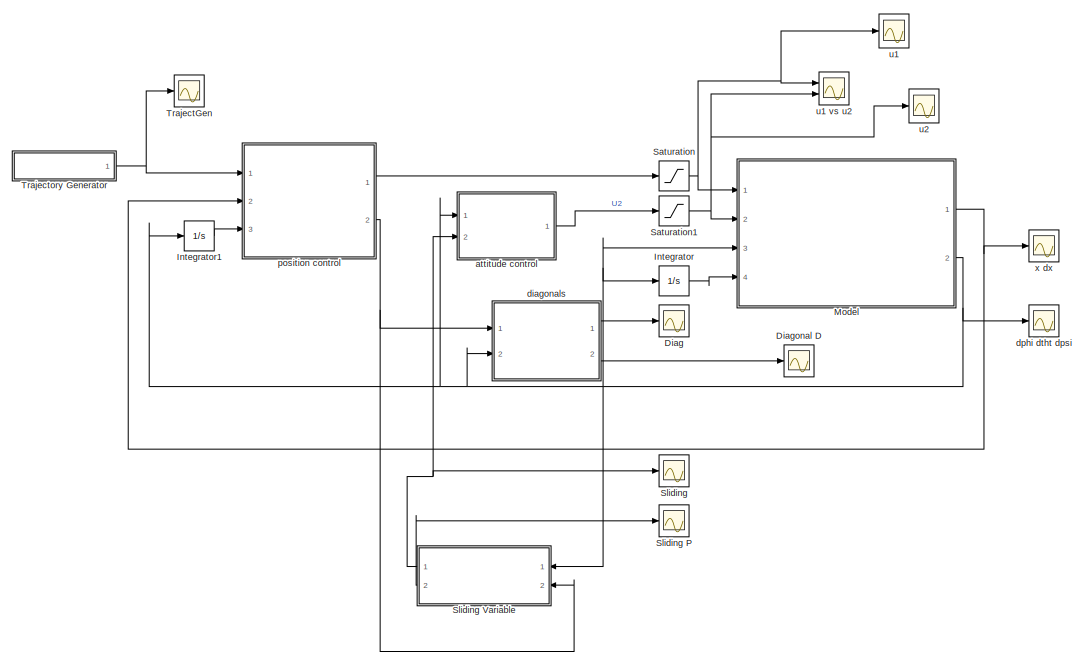
[diagram: root canvas - part 1/2, middle left region]
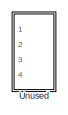
[diagram: root canvas - part 2/2, bottom right region]
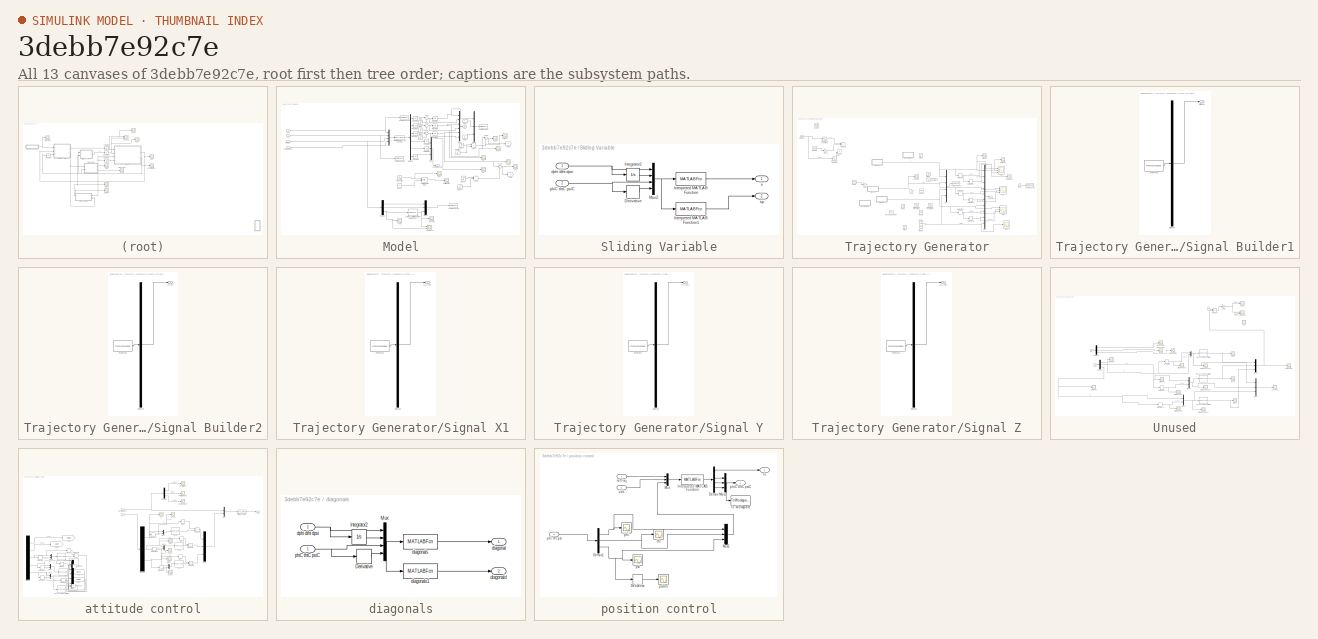
[diagram: thumbnail index - all 13 canvases of the model, root first then tree order]
MODEL slx_3debb7e92c7e
KIND model
CONFIG AbsTol = auto
CONFIG EnableMultiTasking = on
CONFIG FixedStep = 0.01
CONFIG MaxStep = auto
CONFIG MinStep = auto
CONFIG RelTol = 1e-3
CONFIG SampleTimeConstraint = Unconstrained
CONFIG SolverName = ode3
CONFIG StartTime = 0.0
CONFIG StopTime = 100
BLOCK [Scope] Diag
  Floating = off
  NumInputPorts = 1
  Ports = [1]
  ScopeSpecificationString = Simulink.scopes.TimeScopeBlockCfg('CurrentConfiguration', extmgr.ConfigurationSet(extmgr.Configuration('Core','General UI',true),extmgr.Configuration('Core','Source UI',true),extmgr.Configuration('Sources','WiredSimulink',true),extmgr.Configuration('Visuals','Time Domain',true,'SerializedDisplays',{struct('MinYLimReal','-0.00925','MaxYLimReal','0.08321','YLabelReal','','MinYLimMag','0.00000','MaxY...<+1365ch>
BLOCK [Scope] Diagonal D
  Floating = off
  NumInputPorts = 1
  Ports = [1]
  ScopeSpecificationString = Simulink.scopes.TimeScopeBlockCfg('CurrentConfiguration', extmgr.ConfigurationSet(extmgr.Configuration('Core','General UI',true),extmgr.Configuration('Core','Source UI',true),extmgr.Configuration('Sources','WiredSimulink',true,'DataLoggingVariableName','ScopeData1'),extmgr.Configuration('Visuals','Time Domain',true),extmgr.Configuration('Tools','Plot Navigation',true),extmgr.Configuration('Tools',...<+40ch>  <repeated x5 — deduplicated; at blocks: Diagonal D, Shifted Sine, Scope, S1dot, dphi ( rolldot )>
BLOCK [Integrator] Integrator
  Ports = [1, 1]
BLOCK [Integrator] Integrator1
  Ports = [1, 1]
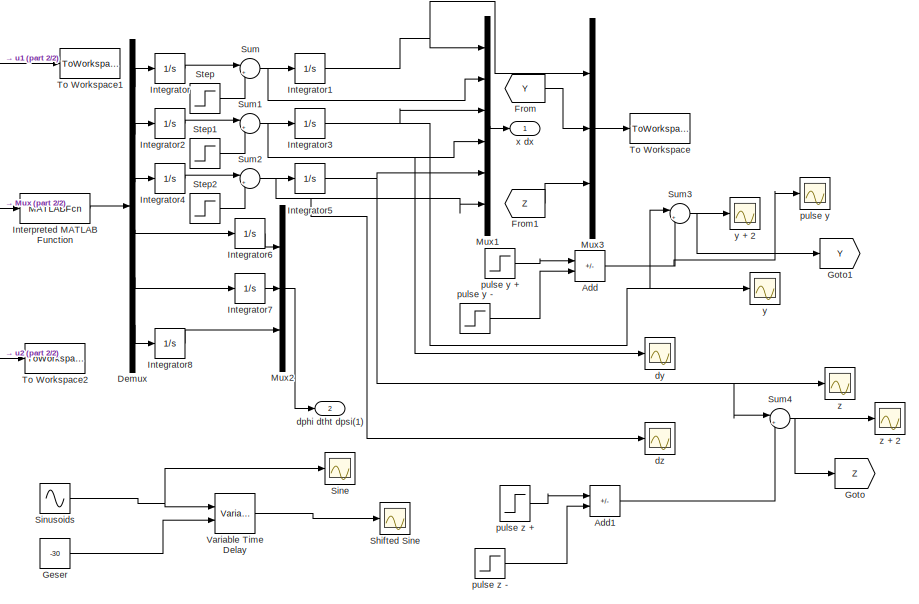
[diagram: Model - part 1/2, middle right region]
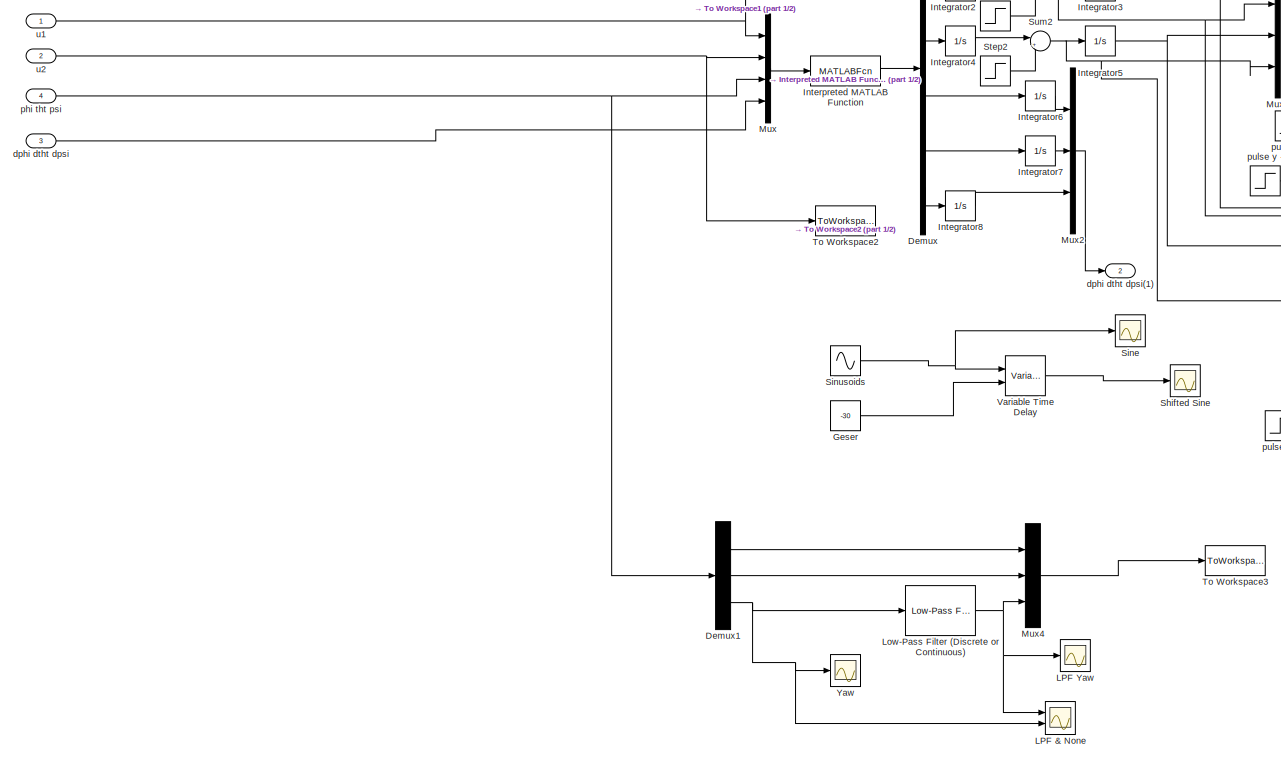
[diagram: Model - part 2/2, most of the canvas]
BLOCK [SubSystem] Model
  Ports = [4, 2]
  RequestExecContextInheritance = off
BLOCK [Sum] Model/Add
  IconShape = rectangular
  Inputs = +-
  Ports = [2, 1]
BLOCK [Sum] Model/Add1
  IconShape = rectangular
  Inputs = +-
  Ports = [2, 1]
BLOCK [Demux] Model/Demux
  Outputs = 6
  Ports = [1, 6]
BLOCK [Demux] Model/Demux1
  Outputs = 3
  Ports = [1, 3]
BLOCK [From] Model/From
  GotoTag = Y
BLOCK [From] Model/From1
  GotoTag = Z
BLOCK [Constant] Model/Geser
  Value = -30
BLOCK [Goto] Model/Goto
  GotoTag = Z
BLOCK [Goto] Model/Goto1
  GotoTag = Y
BLOCK [Integrator] Model/Integrator
  Ports = [1, 1]
BLOCK [Integrator] Model/Integrator1
  Ports = [1, 1]
BLOCK [Integrator] Model/Integrator2
  Ports = [1, 1]
BLOCK [Integrator] Model/Integrator3
  InitialCondition = 8
  Ports = [1, 1]
BLOCK [Integrator] Model/Integrator4
  Ports = [1, 1]
BLOCK [Integrator] Model/Integrator5
  InitialCondition = -8
  Ports = [1, 1]
BLOCK [Integrator] Model/Integrator6
  Ports = [1, 1]
BLOCK [Integrator] Model/Integrator7
  Ports = [1, 1]
BLOCK [Integrator] Model/Integrator8
  Ports = [1, 1]
BLOCK [MATLABFcn] Model/Interpreted MATLAB Function
  MATLABFcn = model(u)
  OutputDimensions = 6
  Ports = [1, 1]
BLOCK [Scope] Model/LPF & None
  Floating = off
  NumInputPorts = 2
  Ports = [2]
  ScopeSpecificationString = Simulink.scopes.TimeScopeBlockCfg('CurrentConfiguration', extmgr.ConfigurationSet(extmgr.Configuration('Core','General UI',true),extmgr.Configuration('Core','Source UI',true),extmgr.Configuration('Sources','WiredSimulink',true,'DataLoggingVariableName','ScopeData3'),extmgr.Configuration('Visuals','Time Domain',true,'SerializedDisplays',{struct('MinYLimReal','-0.00344','MaxYLimReal','0.00344','YLab...<+1450ch>
BLOCK [Scope] Model/LPF Yaw
  Floating = off
  NumInputPorts = 1
  Ports = [1]
  ScopeSpecificationString = Simulink.scopes.TimeScopeBlockCfg('CurrentConfiguration', extmgr.ConfigurationSet(extmgr.Configuration('Core','General UI',true),extmgr.Configuration('Core','Source UI',true),extmgr.Configuration('Sources','WiredSimulink',true,'DataLoggingVariableName','ScopeData1'),extmgr.Configuration('Visuals','Time Domain',true,'SerializedDisplays',{struct('MinYLimReal','-0.0000011','MaxYLimReal','0.0000012','...<+1455ch>
BLOCK [Reference] Model/Low-Pass Filter (Discrete or Continuous)  REF=eeGeneralControl/Low-Pass Filter
(Discrete or Continuous)
  Ports = [1, 1]
  SourceBlock = eeGeneralControl/Low-Pass Filter\n(Discrete or Continuous)
  SourceProductBaseCode = PS
  SourceType = Low-Pass Filter (Discrete or Continuous)
BLOCK [Mux] Model/Mux
  DisplayOption = bar
  Ports = [4, 1]
BLOCK [Mux] Model/Mux1
  DisplayOption = bar
  Inputs = 6
  Ports = [6, 1]
BLOCK [Mux] Model/Mux2
  DisplayOption = bar
  Inputs = 3
  Ports = [3, 1]
BLOCK [Mux] Model/Mux3
  DisplayOption = bar
  Inputs = 3
  Ports = [3, 1]
BLOCK [Mux] Model/Mux4
  DisplayOption = bar
  Inputs = 3
  Ports = [3, 1]
BLOCK [Scope] Model/Shifted Sine
  Floating = off
  NumInputPorts = 1
  Ports = [1]
BLOCK [Scope] Model/Sine
  Floating = off
  NumInputPorts = 1
  Ports = [1]
  ScopeSpecificationString = Simulink.scopes.TimeScopeBlockCfg('CurrentConfiguration', extmgr.ConfigurationSet(extmgr.Configuration('Core','General UI',true),extmgr.Configuration('Core','Source UI',true),extmgr.Configuration('Sources','WiredSimulink',true,'DataLoggingVariableName','ScopeData2'),extmgr.Configuration('Visuals','Time Domain',true),extmgr.Configuration('Tools','Plot Navigation',true),extmgr.Configuration('Tools',...<+40ch>  <repeated x4 — deduplicated; at blocks: Sine, Yaw, Scope1, dtht ( pitchdot )>
BLOCK [Sin] Model/Sinusoids
  Ports = [0, 1]
  SampleTime = 0
BLOCK [Step] Model/Step
  After = 5
  SampleTime = 0
  Time = 25
BLOCK [Step] Model/Step1
  After = 5
  SampleTime = 0
  Time = 25
BLOCK [Step] Model/Step2
  After = 5
  SampleTime = 0
  Time = 25
BLOCK [Sum] Model/Sum
  Inputs = |++
  Ports = [2, 1]
BLOCK [Sum] Model/Sum1
  Inputs = |++
  Ports = [2, 1]
BLOCK [Sum] Model/Sum2
  Inputs = |++
  Ports = [2, 1]
BLOCK [Sum] Model/Sum3
  Inputs = |++
  Ports = [2, 1]
BLOCK [Sum] Model/Sum4
  Inputs = |++
  Ports = [2, 1]
BLOCK [ToWorkspace] Model/To Workspace
  FixptAsFi = on
  MaxDataPoints = inf
  Ports = [1]
  SampleTime = -1
  VariableName = xyz
BLOCK [ToWorkspace] Model/To Workspace1
  FixptAsFi = on
  MaxDataPoints = inf
  Ports = [1]
  SampleTime = -1
  VariableName = u1
BLOCK [ToWorkspace] Model/To Workspace2
  FixptAsFi = on
  MaxDataPoints = inf
  Ports = [1]
  SampleTime = -1
  VariableName = u2
BLOCK [ToWorkspace] Model/To Workspace3
  FixptAsFi = on
  MaxDataPoints = inf
  Ports = [1]
  SampleTime = -1
  VariableName = phi_tht_psi
BLOCK [VariableTransportDelay] Model/Variable Time Delay
  MaximumDelay = 10
  Ports = [2, 1]
BLOCK [Scope] Model/Yaw
  Floating = off
  NumInputPorts = 1
  Ports = [1]
BLOCK [Inport] Model/dphi dtht dpsi
  Port = 3
BLOCK [Outport] Model/dphi dtht dpsi(1)
  Port = 2
BLOCK [Scope] Model/dy
  Floating = off
  NumInputPorts = 1
  Ports = [1]
  ScopeSpecificationString = Simulink.scopes.TimeScopeBlockCfg('CurrentConfiguration', extmgr.ConfigurationSet(extmgr.Configuration('Core','General UI',true),extmgr.Configuration('Core','Source UI',true),extmgr.Configuration('Sources','WiredSimulink',true,'DataLoggingVariableName','ScopeData2'),extmgr.Configuration('Visuals','Time Domain',true,'SerializedDisplays',{struct('MinYLimReal','-1.16934','MaxYLimReal','1.87201','YLab...<+1363ch>
BLOCK [Scope] Model/dz
  Floating = off
  NumInputPorts = 1
  Ports = [1]
  ScopeSpecificationString = Simulink.scopes.TimeScopeBlockCfg('CurrentConfiguration', extmgr.ConfigurationSet(extmgr.Configuration('Core','General UI',true),extmgr.Configuration('Core','Source UI',true),extmgr.Configuration('Sources','WiredSimulink',true,'DataLoggingVariableName','ScopeData4'),extmgr.Configuration('Visuals','Time Domain',true,'SerializedDisplays',{struct('MinYLimReal','-1.52907','MaxYLimReal','0.41504','YLab...<+1363ch>
BLOCK [Inport] Model/phi tht psi
  Port = 4
BLOCK [Scope] Model/pulse y
  Floating = off
  NumInputPorts = 1
  Ports = [1]
  ScopeSpecificationString = Simulink.scopes.TimeScopeBlockCfg('CurrentConfiguration', extmgr.ConfigurationSet(extmgr.Configuration('Core','General UI',true),extmgr.Configuration('Core','Source UI',true),extmgr.Configuration('Sources','WiredSimulink',true,'DataLoggingVariableName','ScopeData7'),extmgr.Configuration('Visuals','Time Domain',true,'SerializedDisplays',{struct('MinYLimReal','-0.25','MaxYLimReal','2.25','YLabelReal...<+1344ch>
BLOCK [Step] Model/pulse y +
  After = 2
  SampleTime = 0
  Time = 0
BLOCK [Step] Model/pulse y -
  After = 2
  SampleTime = 0
  Time = 0.010
BLOCK [Step] Model/pulse z +
  After = 2
  SampleTime = 0
  Time = 0
BLOCK [Step] Model/pulse z -
  After = 2
  SampleTime = 0
  Time = 0.010
BLOCK [Inport] Model/u1
BLOCK [Inport] Model/u2
  Port = 2
BLOCK [Outport] Model/x dx
BLOCK [Scope] Model/y
  Floating = off
  NumInputPorts = 1
  Ports = [1]
  ScopeSpecificationString = Simulink.scopes.TimeScopeBlockCfg('CurrentConfiguration', extmgr.ConfigurationSet(extmgr.Configuration('Core','General UI',true),extmgr.Configuration('Core','Source UI',true),extmgr.Configuration('Sources','WiredSimulink',true,'DataLoggingVariableName','ScopeData1'),extmgr.Configuration('Visuals','Time Domain',true,'SerializedDisplays',{struct('MinYLimReal','5.02837','MaxYLimReal','9.93167','YLabe...<+1368ch>
BLOCK [Scope] Model/y + 2
  Floating = off
  NumInputPorts = 1
  Ports = [1]
  ScopeSpecificationString = Simulink.scopes.TimeScopeBlockCfg('CurrentConfiguration', extmgr.ConfigurationSet(extmgr.Configuration('Core','General UI',true),extmgr.Configuration('Core','Source UI',true),extmgr.Configuration('Sources','WiredSimulink',true,'DataLoggingVariableName','ScopeData5'),extmgr.Configuration('Visuals','Time Domain',true,'SerializedDisplays',{struct('MinYLimReal','4.82244','MaxYLimReal','10.57528','YLab...<+1365ch>
BLOCK [Scope] Model/z
  Floating = off
  NumInputPorts = 1
  Ports = [1]
  ScopeSpecificationString = Simulink.scopes.TimeScopeBlockCfg('CurrentConfiguration', extmgr.ConfigurationSet(extmgr.Configuration('Core','General UI',true),extmgr.Configuration('Core','Source UI',true),extmgr.Configuration('Sources','WiredSimulink',true,'DataLoggingVariableName','ScopeData3'),extmgr.Configuration('Visuals','Time Domain',true,'SerializedDisplays',{struct('MinYLimReal','-9.6271','MaxYLimReal','-7.81892','YLab...<+1397ch>
BLOCK [Scope] Model/z + 2
  Floating = off
  NumInputPorts = 1
  Ports = [1]
  ScopeSpecificationString = Simulink.scopes.TimeScopeBlockCfg('CurrentConfiguration', extmgr.ConfigurationSet(extmgr.Configuration('Core','General UI',true),extmgr.Configuration('Core','Source UI',true),extmgr.Configuration('Sources','WiredSimulink',true,'DataLoggingVariableName','ScopeData6'),extmgr.Configuration('Visuals','Time Domain',true,'SerializedDisplays',{struct('MinYLimReal','-10.09524','MaxYLimReal','10.8618','YLa...<+1394ch>
BLOCK [Saturate] Saturation
  LowerLimit = 0
  NameLocation = top
  UpperLimit = 2*m*g
BLOCK [Saturate] Saturation1
  LowerLimit = -0.2
  UpperLimit = 0.2
BLOCK [Scope] Sliding
  Floating = off
  NumInputPorts = 1
  Ports = [1]
  ScopeSpecificationString = Simulink.scopes.TimeScopeBlockCfg('CurrentConfiguration', extmgr.ConfigurationSet(extmgr.Configuration('Core','General UI',true),extmgr.Configuration('Core','Source UI',true),extmgr.Configuration('Sources','WiredSimulink',true,'DataLoggingVariableName','ScopeData2'),extmgr.Configuration('Visuals','Time Domain',true,'SerializedDisplays',{struct('MinYLimReal','-1740.33859','MaxYLimReal','193.37095',...<+1445ch>
BLOCK [Scope] Sliding P
  Floating = off
  NumInputPorts = 1
  Ports = [1]
  ScopeSpecificationString = Simulink.scopes.TimeScopeBlockCfg('CurrentConfiguration', extmgr.ConfigurationSet(extmgr.Configuration('Core','General UI',true),extmgr.Configuration('Core','Source UI',true),extmgr.Configuration('Sources','WiredSimulink',true,'DataLoggingVariableName','ScopeData1'),extmgr.Configuration('Visuals','Time Domain',true,'SerializedDisplays',{struct('MinYLimReal','-306.04502','MaxYLimReal','34.005','YLa...<+1433ch>
BLOCK [SubSystem] Sliding Variable
  Ports = [2, 2]
  RequestExecContextInheritance = off
BLOCK [Derivative] Sliding Variable/Derivative
BLOCK [Integrator] Sliding Variable/Integrator2
  NameLocation = top
  Ports = [1, 1]
BLOCK [MATLABFcn] Sliding Variable/Interpreted MATLAB Function
  MATLABFcn = sliding_var(u)
  OutputDimensions = 3
  Ports = [1, 1]
BLOCK [MATLABFcn] Sliding Variable/Interpreted MATLAB Function1
  MATLABFcn = sliding_var(u)
  OutputDimensions = 3
  Ports = [1, 1]
BLOCK [Mux] Sliding Variable/Mux2
  DisplayOption = bar
  Ports = [4, 1]
BLOCK [Inport] Sliding Variable/dphi dtht dpsi
BLOCK [Inport] Sliding Variable/phiC thtC psiC
  Port = 2
BLOCK [Outport] Sliding Variable/s
BLOCK [Outport] Sliding Variable/sp
  Port = 2
BLOCK [Scope] TrajectGen
  Floating = off
  NumInputPorts = 1
  Ports = [1]
  ScopeSpecificationString = Simulink.scopes.TimeScopeBlockCfg('CurrentConfiguration', extmgr.ConfigurationSet(extmgr.Configuration('Core','General UI',true),extmgr.Configuration('Core','Source UI',true),extmgr.Configuration('Sources','WiredSimulink',true,'DataLoggingVariableName','ScopeData5'),extmgr.Configuration('Visuals','Time Domain',true,'SerializedDisplays',{struct('MinYLimReal','-19.00000','MaxYLimReal','90.99999','YL...<+1684ch>
BLOCK [SubSystem] Trajectory Generator
  Ports = [0, 1]
  RequestExecContextInheritance = off
BLOCK [Clock] Trajectory Generator/Clock
BLOCK [Clock] Trajectory Generator/Clock2
  Commented = on
BLOCK [Derivative] Trajectory Generator/Derivative
BLOCK [Derivative] Trajectory Generator/Derivative1
BLOCK [Derivative] Trajectory Generator/Derivative2
BLOCK [Derivative] Trajectory Generator/Derivative3
BLOCK [Derivative] Trajectory Generator/Derivative4
BLOCK [Derivative] Trajectory Generator/Derivative5
BLOCK [Gain] Trajectory Generator/Gain
  Commented = on
  Gain = -1
BLOCK [Gain] Trajectory Generator/Gain1
  Commented = on
  Gain = -1
BLOCK [Gain] Trajectory Generator/Gain2
  Commented = on
  Gain = -1
BLOCK [Mux] Trajectory Generator/Mux
  DisplayOption = bar
  Inputs = 10
  Ports = [10, 1]
BLOCK [Mux] Trajectory Generator/Mux1
  DisplayOption = bar
  Ports = [4, 1]
BLOCK [Product] Trajectory Generator/Product
  Commented = on
  Ports = [2, 1]
BLOCK [Product] Trajectory Generator/Product1
  Commented = on
  Ports = [2, 1]
BLOCK [Reference] Trajectory Generator/Ramp  REF=simulink/Sources/Ramp
  Commented = on
  Ports = [0, 1]
  SourceBlock = simulink/Sources/Ramp
  SourceProductBaseCode = SL
  SourceType = Ramp
BLOCK [Reference] Trajectory Generator/Ramp1  REF=simulink/Sources/Ramp
  Commented = on
  Ports = [0, 1]
  SourceBlock = simulink/Sources/Ramp
  SourceProductBaseCode = SL
  SourceType = Ramp
BLOCK [Reference] Trajectory Generator/Ramp2  REF=simulink/Sources/Ramp
  Commented = on
  Ports = [0, 1]
  SourceBlock = simulink/Sources/Ramp
  SourceProductBaseCode = SL
  SourceType = Ramp
BLOCK [Reference] Trajectory Generator/Ramp3  REF=simulink/Sources/Ramp
  Commented = on
  Ports = [0, 1]
  SourceBlock = simulink/Sources/Ramp
  SourceProductBaseCode = SL
  SourceType = Ramp
BLOCK [Reference] Trajectory Generator/Ramp4  REF=simulink/Sources/Ramp
  Ports = [0, 1]
  SourceBlock = simulink/Sources/Ramp
  SourceProductBaseCode = SL
  SourceType = Ramp
BLOCK [Reference] Trajectory Generator/Ramp5  REF=simulink/Sources/Ramp
  Commented = on
  Ports = [0, 1]
  SourceBlock = simulink/Sources/Ramp
  SourceProductBaseCode = SL
  SourceType = Ramp
BLOCK [RandomNumber] Trajectory Generator/Random Number
  Commented = on
  SampleTime = 0
BLOCK [Scope] Trajectory Generator/Scope
  Commented = on
  Floating = off
  NumInputPorts = 1
  Ports = [1]
BLOCK [Scope] Trajectory Generator/Scope1
  Floating = off
  NumInputPorts = 1
  Ports = [1]
BLOCK [SubSystem] Trajectory Generator/Signal Builder1
  ClipboardFcn = sigbuilder_block('clipboard');
  CloseFcn = sigbuilder_block('close');
  Commented = on
  ContinueFcn = sigbuilder_block('continue');
  CopyFcn = sigbuilder_block('copy');
  DeleteFcn = sigbuilder_block('delete');
  LoadFcn = sigbuilder_block('load');
  MaskHideContents = on
  ModelCloseFcn = sigbuilder_block('modelClose');
  NameChangeFcn = sigbuilder_block('namechange');
  OpenFcn = sigbuilder_block('open',[411 128.5 543.5 351.5 ]);
  PauseFcn = sigbuilder_block('pause');
  Ports = [0, 1]
  PreSaveFcn = sigbuilder_block('preSave');
  RequestExecContextInheritance = off
  StartFcn = sigbuilder_block('start');
  StopFcn = sigbuilder_block('stop');
  Tag = STV Subsys
BLOCK [Demux] Trajectory Generator/Signal Builder1/Demux
  DisplayOption = none
  Outputs = 1
  Ports = [1, 1]
  Tag = STV Demux
BLOCK [FromWorkspace] Trajectory Generator/Signal Builder1/FromWs
  Tag = STV FromWs
  VariableName = tuvar
BLOCK [Outport] Trajectory Generator/Signal Builder1/Signal 1
  Tag = STV Outport
BLOCK [SubSystem] Trajectory Generator/Signal Builder2
  ClipboardFcn = sigbuilder_block('clipboard');
  CloseFcn = sigbuilder_block('close');
  Commented = on
  ContinueFcn = sigbuilder_block('continue');
  CopyFcn = sigbuilder_block('copy');
  DeleteFcn = sigbuilder_block('delete');
  LoadFcn = sigbuilder_block('load');
  MaskHideContents = on
  ModelCloseFcn = sigbuilder_block('modelClose');
  NameChangeFcn = sigbuilder_block('namechange');
  OpenFcn = sigbuilder_block('open',[5.5 30 949 418 ]);
  PauseFcn = sigbuilder_block('pause');
  Ports = [0, 1]
  PreSaveFcn = sigbuilder_block('preSave');
  RequestExecContextInheritance = off
  StartFcn = sigbuilder_block('start');
  StopFcn = sigbuilder_block('stop');
  Tag = STV Subsys
BLOCK [Demux] Trajectory Generator/Signal Builder2/Demux
  DisplayOption = none
  Outputs = 1
  Ports = [1, 1]
  Tag = STV Demux
BLOCK [FromWorkspace] Trajectory Generator/Signal Builder2/FromWs
  Tag = STV FromWs
  VariableName = tuvar
BLOCK [Outport] Trajectory Generator/Signal Builder2/Z (m)
  Tag = STV Outport
BLOCK [SubSystem] Trajectory Generator/Signal X1
  ClipboardFcn = sigbuilder_block('clipboard');
  CloseFcn = sigbuilder_block('close');
  ContinueFcn = sigbuilder_block('continue');
  CopyFcn = sigbuilder_block('copy');
  DeleteFcn = sigbuilder_block('delete');
  LoadFcn = sigbuilder_block('load');
  MaskHideContents = on
  ModelCloseFcn = sigbuilder_block('modelClose');
  NameChangeFcn = sigbuilder_block('namechange');
  OpenFcn = sigbuilder_block('open',[411 128.5 543.5 351.5 ]);
  PauseFcn = sigbuilder_block('pause');
  Ports = [0, 1]
  PreSaveFcn = sigbuilder_block('preSave');
  RequestExecContextInheritance = off
  StartFcn = sigbuilder_block('start');
  StopFcn = sigbuilder_block('stop');
  Tag = STV Subsys
BLOCK [Demux] Trajectory Generator/Signal X1/Demux
  DisplayOption = none
  Outputs = 1
  Ports = [1, 1]
  Tag = STV Demux
BLOCK [FromWorkspace] Trajectory Generator/Signal X1/FromWs
  Tag = STV FromWs
  VariableName = tuvar
BLOCK [Outport] Trajectory Generator/Signal X1/X_1 (m)
  Tag = STV Outport
BLOCK [SubSystem] Trajectory Generator/Signal Y
  ClipboardFcn = sigbuilder_block('clipboard');
  CloseFcn = sigbuilder_block('close');
  ContinueFcn = sigbuilder_block('continue');
  CopyFcn = sigbuilder_block('copy');
  DeleteFcn = sigbuilder_block('delete');
  LoadFcn = sigbuilder_block('load');
  MaskHideContents = on
  ModelCloseFcn = sigbuilder_block('modelClose');
  NameChangeFcn = sigbuilder_block('namechange');
  OpenFcn = sigbuilder_block('open',[411 128.5 543.5 351.5 ]);
  PauseFcn = sigbuilder_block('pause');
  Ports = [0, 1]
  PreSaveFcn = sigbuilder_block('preSave');
  RequestExecContextInheritance = off
  StartFcn = sigbuilder_block('start');
  StopFcn = sigbuilder_block('stop');
  Tag = STV Subsys
BLOCK [Demux] Trajectory Generator/Signal Y/Demux
  DisplayOption = none
  Outputs = 1
  Ports = [1, 1]
  Tag = STV Demux
BLOCK [FromWorkspace] Trajectory Generator/Signal Y/FromWs
  Tag = STV FromWs
  VariableName = tuvar
BLOCK [Outport] Trajectory Generator/Signal Y/Y_2 (m)
  Tag = STV Outport
BLOCK [SubSystem] Trajectory Generator/Signal Z
  ClipboardFcn = sigbuilder_block('clipboard');
  CloseFcn = sigbuilder_block('close');
  ContinueFcn = sigbuilder_block('continue');
  CopyFcn = sigbuilder_block('copy');
  DeleteFcn = sigbuilder_block('delete');
  LoadFcn = sigbuilder_block('load');
  MaskHideContents = on
  ModelCloseFcn = sigbuilder_block('modelClose');
  NameChangeFcn = sigbuilder_block('namechange');
  OpenFcn = sigbuilder_block('open',[411 128.5 543.5 351.5 ]);
  PauseFcn = sigbuilder_block('pause');
  Ports = [0, 1]
  PreSaveFcn = sigbuilder_block('preSave');
  RequestExecContextInheritance = off
  StartFcn = sigbuilder_block('start');
  StopFcn = sigbuilder_block('stop');
  Tag = STV Subsys
BLOCK [Demux] Trajectory Generator/Signal Z/Demux
  DisplayOption = none
  Outputs = 1
  Ports = [1, 1]
  Tag = STV Demux
BLOCK [FromWorkspace] Trajectory Generator/Signal Z/FromWs
  Tag = STV FromWs
  VariableName = tuvar
BLOCK [Outport] Trajectory Generator/Signal Z/Z_1 (m)
  Tag = STV Outport
BLOCK [Scope] Trajectory Generator/Sin 1
  Floating = off
  NumInputPorts = 3
  Ports = [3]
  ScopeSpecificationString = Simulink.scopes.TimeScopeBlockCfg('CurrentConfiguration', extmgr.ConfigurationSet(extmgr.Configuration('Core','General UI',true),extmgr.Configuration('Core','Source UI',true),extmgr.Configuration('Sources','WiredSimulink',true,'DataLoggingVariableName','ScopeData1'),extmgr.Configuration('Visuals','Time Domain',true,'SerializedDisplays',{struct('MinYLimReal','-12.5946','MaxYLimReal','112.51049','YL...<+1429ch>
BLOCK [Scope] Trajectory Generator/Sin 2
  Floating = off
  NumInputPorts = 3
  Ports = [3]
  ScopeSpecificationString = Simulink.scopes.TimeScopeBlockCfg('CurrentConfiguration', extmgr.ConfigurationSet(extmgr.Configuration('Core','General UI',true),extmgr.Configuration('Core','Source UI',true),extmgr.Configuration('Sources','WiredSimulink',true,'DataLoggingVariableName','ScopeData2'),extmgr.Configuration('Visuals','Time Domain',true,'SerializedDisplays',{struct('MinYLimReal','-2.19635','MaxYLimReal','11.35515','YLa...<+1387ch>
BLOCK [Scope] Trajectory Generator/Sin 3
  Floating = off
  NumInputPorts = 3
  Ports = [3]
  ScopeSpecificationString = Simulink.scopes.TimeScopeBlockCfg('CurrentConfiguration', extmgr.ConfigurationSet(extmgr.Configuration('Core','General UI',true),extmgr.Configuration('Core','Source UI',true),extmgr.Configuration('Sources','WiredSimulink',true,'DataLoggingVariableName','ScopeData3'),extmgr.Configuration('Visuals','Time Domain',true,'SerializedDisplays',{struct('MinYLimReal','-11.5','MaxYLimReal','23.5','YLabelReal...<+1368ch>
BLOCK [Scope] Trajectory Generator/Sin 4
  Floating = off
  NumInputPorts = 1
  Ports = [1]
  ScopeSpecificationString = Simulink.scopes.TimeScopeBlockCfg('CurrentConfiguration', extmgr.ConfigurationSet(extmgr.Configuration('Core','General UI',true),extmgr.Configuration('Core','Source UI',true),extmgr.Configuration('Sources','WiredSimulink',true,'DataLoggingVariableName','ScopeData4'),extmgr.Configuration('Visuals','Time Domain',true,'SerializedDisplays',{struct('MinYLimReal','-1.00000','MaxYLimReal','1.00000','YLab...<+1365ch>
BLOCK [Sin] Trajectory Generator/Sine Wave Function
  Amplitude = 10
  Commented = on
  Frequency = 0.1
  Phase = pi/2
  Ports = [1, 1]
  SampleTime = 0
  TimeSource = Use external signal
BLOCK [Sin] Trajectory Generator/Sine Wave Function1
  Amplitude = 8
  Commented = on
  Frequency = 0.1
  Phase = pi/2
  Ports = [1, 1]
  SampleTime = 0
  TimeSource = Use external signal
BLOCK [Sin] Trajectory Generator/Sine Wave Function2
  Amplitude = 10
  Commented = on
  Frequency = 0.1
  Ports = [1, 1]
  SampleTime = 0
  TimeSource = Use external signal
BLOCK [Sin] Trajectory Generator/Sine Wave Function3
  Amplitude = 10
  Commented = on
  Frequency = 0.1
  Ports = [1, 1]
  SampleTime = 0
  TimeSource = Use external signal
BLOCK [Sin] Trajectory Generator/Sine Wave Function4
  Amplitude = 10
  Commented = on
  Frequency = 0.1
  Phase = pi/2
  Ports = [1, 1]
  SampleTime = 0
  TimeSource = Use external signal
BLOCK [Step] Trajectory Generator/Step1
  Before = -8
  Commented = on
  SampleTime = 0
BLOCK [Step] Trajectory Generator/Step2
  Commented = on
  SampleTime = 0
BLOCK [Step] Trajectory Generator/Step3
  After = 10
  SampleTime = 0
  Time = 0
BLOCK [Step] Trajectory Generator/Step4
  After = 8
  Commented = on
  SampleTime = 0
BLOCK [ToWorkspace] Trajectory Generator/To Workspace
  FixptAsFi = on
  MaxDataPoints = inf
  Ports = [1]
  SampleTime = -1
  VariableName = t
BLOCK [ToWorkspace] Trajectory Generator/To Workspace1
  FixptAsFi = on
  MaxDataPoints = inf
  Ports = [1]
  SampleTime = -1
  VariableName = ref
BLOCK [Scope] Trajectory Generator/ddsignal 1
  Floating = off
  NumInputPorts = 1
  Ports = [1]
  ScopeSpecificationString = Simulink.scopes.TimeScopeBlockCfg('CurrentConfiguration', extmgr.ConfigurationSet(extmgr.Configuration('Core','General UI',true),extmgr.Configuration('Core','Source UI',true),extmgr.Configuration('Sources','WiredSimulink',true,'DataLoggingVariableName','ScopeData3'),extmgr.Configuration('Visuals','Time Domain',true,'SerializedDisplays',{struct('MinYLimReal','-31000.00000','MaxYLimReal','31000.0000...<+1395ch>
BLOCK [Scope] Trajectory Generator/dsignal 1
  Floating = off
  NumInputPorts = 1
  Ports = [1]
  ScopeSpecificationString = Simulink.scopes.TimeScopeBlockCfg('CurrentConfiguration', extmgr.ConfigurationSet(extmgr.Configuration('Core','General UI',true),extmgr.Configuration('Core','Source UI',true),extmgr.Configuration('Sources','WiredSimulink',true,'DataLoggingVariableName','ScopeData2'),extmgr.Configuration('Visuals','Time Domain',true,'SerializedDisplays',{struct('MinYLimReal','-143.5','MaxYLimReal','291.5','YLabelRe...<+1354ch>
BLOCK [Outport] Trajectory Generator/r_psi_des
BLOCK [Scope] Trajectory Generator/signal 1
  Floating = off
  NumInputPorts = 1
  Ports = [1]
  ScopeSpecificationString = Simulink.scopes.TimeScopeBlockCfg('CurrentConfiguration', extmgr.ConfigurationSet(extmgr.Configuration('Core','General UI',true),extmgr.Configuration('Core','Source UI',true),extmgr.Configuration('Sources','WiredSimulink',true,'DataLoggingVariableName','ScopeData1'),extmgr.Configuration('Visuals','Time Domain',true,'SerializedDisplays',{struct('MinYLimReal','-1.05184','MaxYLimReal','9.46655','YLab...<+1364ch>
BLOCK [SubSystem] Unused
  Commented = on
  Ports = [4]
  RequestExecContextInheritance = off
BLOCK [Demux] Unused/Demux
  Commented = on
  Outputs = 3
  Ports = [1, 3]
BLOCK [Demux] Unused/Demux1
  Commented = on
  Outputs = 3
  Ports = [1, 3]
BLOCK [Derivative] Unused/Derivative
  Commented = on
BLOCK [Derivative] Unused/Derivative1
  Commented = on
BLOCK [Derivative] Unused/Derivative2
  Commented = on
BLOCK [Scope] Unused/Diagonal D1
  Commented = on
  Floating = off
  NumInputPorts = 1
  Ports = [1]
  ScopeSpecificationString = Simulink.scopes.TimeScopeBlockCfg('CurrentConfiguration', extmgr.ConfigurationSet(extmgr.Configuration('Core','General UI',true),extmgr.Configuration('Core','Source UI',true),extmgr.Configuration('Sources','WiredSimulink',true,'DataLoggingVariableName','ScopeData6'),extmgr.Configuration('Visuals','Time Domain',true,'SerializedDisplays',{struct('MinYLimReal','-0.00925','MaxYLimReal','0.08321','YLab...<+1367ch>
BLOCK [Scope] Unused/Diagonal D2
  Commented = on
  Floating = off
  NumInputPorts = 1
  Ports = [1]
  ScopeSpecificationString = Simulink.scopes.TimeScopeBlockCfg('CurrentConfiguration', extmgr.ConfigurationSet(extmgr.Configuration('Core','General UI',true),extmgr.Configuration('Core','Source UI',true),extmgr.Configuration('Sources','WiredSimulink',true,'DataLoggingVariableName','ScopeData7'),extmgr.Configuration('Visuals','Time Domain',true,'SerializedDisplays',{struct('MinYLimReal','-1.00000','MaxYLimReal','1.00000','YLab...<+1367ch>
BLOCK [Scope] Unused/Diagonal D3
  Commented = on
  Floating = off
  NumInputPorts = 1
  Ports = [1]
  ScopeSpecificationString = Simulink.scopes.TimeScopeBlockCfg('CurrentConfiguration', extmgr.ConfigurationSet(extmgr.Configuration('Core','General UI',true),extmgr.Configuration('Core','Source UI',true),extmgr.Configuration('Sources','WiredSimulink',true,'DataLoggingVariableName','ScopeData8'),extmgr.Configuration('Visuals','Time Domain',true,'SerializedDisplays',{struct('MinYLimReal','-0.00713','MaxYLimReal','0.06413','YLab...<+1367ch>
BLOCK [Scope] Unused/FSMC
  Commented = on
  Floating = off
  NumInputPorts = 1
  Ports = [1]
  ScopeSpecificationString = Simulink.scopes.TimeScopeBlockCfg('CurrentConfiguration', extmgr.ConfigurationSet(extmgr.Configuration('Core','General UI',true),extmgr.Configuration('Core','Source UI',true),extmgr.Configuration('Sources','WiredSimulink',true,'DataLoggingVariableName','ScopeData2'),extmgr.Configuration('Visuals','Time Domain',true,'SerializedDisplays',{struct('MinYLimReal','-0.63204','MaxYLimReal','0.53851','YLab...<+1457ch>
BLOCK [Scope] Unused/FSMC Total
  Commented = on
  Floating = off
  NumInputPorts = 1
  Ports = [1]
  ScopeSpecificationString = Simulink.scopes.TimeScopeBlockCfg('CurrentConfiguration', extmgr.ConfigurationSet(extmgr.Configuration('Core','General UI',true),extmgr.Configuration('Core','Source UI',true),extmgr.Configuration('Sources','WiredSimulink',true,'DataLoggingVariableName','ScopeData1'),extmgr.Configuration('Visuals','Time Domain',true,'SerializedDisplays',{struct('MinYLimReal','-5.00000','MaxYLimReal','5.00000','YLab...<+1476ch>
BLOCK [Scope] Unused/FSMC x U2
  Commented = on
  Floating = off
  NumInputPorts = 2
  Ports = [2]
  ScopeSpecificationString = Simulink.scopes.TimeScopeBlockCfg('CurrentConfiguration', extmgr.ConfigurationSet(extmgr.Configuration('Core','General UI',true),extmgr.Configuration('Core','Source UI',true),extmgr.Configuration('Sources','WiredSimulink',true,'DataLoggingVariableName','ScopeData1'),extmgr.Configuration('Visuals','Time Domain',true,'SerializedDisplays',{struct('MinYLimReal','-10.00000','MaxYLimReal','10.00000','YL...<+1513ch>
BLOCK [Reference] Unused/Fuzzy Logic Controller  REF=fuzblock/Fuzzy Logic   (lib defined in mdl_858b3b3e7478)
Controller
  Commented = on
  Ports = [1, 1]
  SourceBlock = fuzblock/Fuzzy Logic \nController
  SourceProductBaseCode = FL
  SourceType = Fuzzy Inference System
BLOCK [Reference] Unused/Fuzzy Logic Controller1  REF=fuzblock/Fuzzy Logic   (lib defined in mdl_858b3b3e7478)
Controller
  Commented = on
  Ports = [1, 1]
  SourceBlock = fuzblock/Fuzzy Logic \nController
  SourceProductBaseCode = FL
  SourceType = Fuzzy Inference System
BLOCK [Reference] Unused/Fuzzy Logic Controller2  REF=fuzblock/Fuzzy Logic   (lib defined in mdl_858b3b3e7478)
Controller
  Commented = on
  Ports = [1, 1]
  SourceBlock = fuzblock/Fuzzy Logic \nController
  SourceProductBaseCode = FL
  SourceType = Fuzzy Inference System
BLOCK [Gain] Unused/Gain
  Commented = on
  Gain = 0.5
BLOCK [Inport] Unused/In1
BLOCK [Inport] Unused/In2
  Port = 2
BLOCK [Inport] Unused/In3
  Port = 3
BLOCK [Inport] Unused/In4
  Port = 4
BLOCK [Mux] Unused/Mux
  Commented = on
  DisplayOption = bar
  Inputs = 2
  Ports = [2, 1]
BLOCK [Mux] Unused/Mux1
  Commented = on
  DisplayOption = bar
  Inputs = 2
  Ports = [2, 1]
BLOCK [Mux] Unused/Mux2
  Commented = on
  DisplayOption = bar
  Inputs = 2
  Ports = [2, 1]
BLOCK [Mux] Unused/Mux3
  Commented = on
  DisplayOption = bar
  Inputs = 3
  Ports = [3, 1]
BLOCK [Mux] Unused/Mux4
  Commented = on
  DisplayOption = bar
  Inputs = 3
  Ports = [3, 1]
BLOCK [Product] Unused/Product
  Commented = on
  Ports = [2, 1]
BLOCK [Scope] Unused/S vs Sdot
  Commented = on
  Floating = off
  NumInputPorts = 1
  Ports = [1]
  ScopeSpecificationString = Simulink.scopes.TimeScopeBlockCfg('CurrentConfiguration', extmgr.ConfigurationSet(extmgr.Configuration('Core','General UI',true),extmgr.Configuration('Core','Source UI',true),extmgr.Configuration('Sources','WiredSimulink',true,'DataLoggingVariableName','ScopeData7'),extmgr.Configuration('Visuals','Time Domain',true,'SerializedDisplays',{struct('MinYLimReal','-4329.59339','MaxYLimReal','2455.42017'...<+1476ch>
BLOCK [Scope] Unused/Sliding P1
  Commented = on
  Floating = off
  NumInputPorts = 1
  Ports = [1]
  ScopeSpecificationString = Simulink.scopes.TimeScopeBlockCfg('CurrentConfiguration', extmgr.ConfigurationSet(extmgr.Configuration('Core','General UI',true),extmgr.Configuration('Core','Source UI',true),extmgr.Configuration('Sources','WiredSimulink',true,'DataLoggingVariableName','ScopeData3'),extmgr.Configuration('Visuals','Time Domain',true,'SerializedDisplays',{struct('MinYLimReal','-28.42401','MaxYLimReal','36.37178','YL...<+1426ch>
BLOCK [Scope] Unused/Sliding P1 dot
  Commented = on
  Floating = off
  NumInputPorts = 1
  Ports = [1]
  ScopeSpecificationString = Simulink.scopes.TimeScopeBlockCfg('CurrentConfiguration', extmgr.ConfigurationSet(extmgr.Configuration('Core','General UI',true),extmgr.Configuration('Core','Source UI',true),extmgr.Configuration('Sources','WiredSimulink',true,'DataLoggingVariableName','ScopeData1'),extmgr.Configuration('Visuals','Time Domain',true,'SerializedDisplays',{struct('MinYLimReal','-3263.97784','MaxYLimReal','3618.90081'...<+1445ch>
BLOCK [Scope] Unused/Sliding P1 vs dot
  Commented = on
  Floating = off
  NumInputPorts = 1
  Ports = [1]
  ScopeSpecificationString = Simulink.scopes.TimeScopeBlockCfg('CurrentConfiguration', extmgr.ConfigurationSet(extmgr.Configuration('Core','General UI',true),extmgr.Configuration('Core','Source UI',true),extmgr.Configuration('Sources','WiredSimulink',true,'DataLoggingVariableName','ScopeData4'),extmgr.Configuration('Visuals','Time Domain',true,'SerializedDisplays',{struct('MinYLimReal','-951.34421','MaxYLimReal','446.99576','...<+1423ch>
BLOCK [Scope] Unused/Sliding P2
  Commented = on
  Floating = off
  NumInputPorts = 1
  Ports = [1]
  ScopeSpecificationString = Simulink.scopes.TimeScopeBlockCfg('CurrentConfiguration', extmgr.ConfigurationSet(extmgr.Configuration('Core','General UI',true),extmgr.Configuration('Core','Source UI',true),extmgr.Configuration('Sources','WiredSimulink',true,'DataLoggingVariableName','ScopeData4'),extmgr.Configuration('Visuals','Time Domain',true,'SerializedDisplays',{struct('MinYLimReal','-91.0264','MaxYLimReal','51.62738','YLa...<+1422ch>
BLOCK [Scope] Unused/Sliding P2 dot
  Commented = on
  Floating = off
  NumInputPorts = 1
  Ports = [1]
  ScopeSpecificationString = Simulink.scopes.TimeScopeBlockCfg('CurrentConfiguration', extmgr.ConfigurationSet(extmgr.Configuration('Core','General UI',true),extmgr.Configuration('Core','Source UI',true),extmgr.Configuration('Sources','WiredSimulink',true,'DataLoggingVariableName','ScopeData2'),extmgr.Configuration('Visuals','Time Domain',true,'SerializedDisplays',{struct('MinYLimReal','-8990.40556','MaxYLimReal','10065.4342'...<+1445ch>
BLOCK [Scope] Unused/Sliding P2 vs dot
  Commented = on
  Floating = off
  NumInputPorts = 1
  Ports = [1]
  ScopeSpecificationString = Simulink.scopes.TimeScopeBlockCfg('CurrentConfiguration', extmgr.ConfigurationSet(extmgr.Configuration('Core','General UI',true),extmgr.Configuration('Core','Source UI',true),extmgr.Configuration('Sources','WiredSimulink',true,'DataLoggingVariableName','ScopeData5'),extmgr.Configuration('Visuals','Time Domain',true,'SerializedDisplays',{struct('MinYLimReal','-32261.38514','MaxYLimReal','19262.3115...<+1410ch>
BLOCK [Scope] Unused/Sliding P3
  Commented = on
  Floating = off
  NumInputPorts = 1
  Ports = [1]
  ScopeSpecificationString = Simulink.scopes.TimeScopeBlockCfg('CurrentConfiguration', extmgr.ConfigurationSet(extmgr.Configuration('Core','General UI',true),extmgr.Configuration('Core','Source UI',true),extmgr.Configuration('Sources','WiredSimulink',true,'DataLoggingVariableName','ScopeData5'),extmgr.Configuration('Visuals','Time Domain',true,'SerializedDisplays',{struct('MinYLimReal','-0.17199','MaxYLimReal','0.29067','YLab...<+1361ch>
BLOCK [Scope] Unused/Sliding P3 dot
  Commented = on
  Floating = off
  NumInputPorts = 1
  Ports = [1]
  ScopeSpecificationString = Simulink.scopes.TimeScopeBlockCfg('CurrentConfiguration', extmgr.ConfigurationSet(extmgr.Configuration('Core','General UI',true),extmgr.Configuration('Core','Source UI',true),extmgr.Configuration('Sources','WiredSimulink',true,'DataLoggingVariableName','ScopeData3'),extmgr.Configuration('Visuals','Time Domain',true,'SerializedDisplays',{struct('MinYLimReal','-0.000000004','MaxYLimReal','0.00000001...<+1396ch>
BLOCK [Scope] Unused/Sliding P3 vs dot
  Commented = on
  Floating = off
  NumInputPorts = 1
  Ports = [1]
  ScopeSpecificationString = Simulink.scopes.TimeScopeBlockCfg('CurrentConfiguration', extmgr.ConfigurationSet(extmgr.Configuration('Core','General UI',true),extmgr.Configuration('Core','Source UI',true),extmgr.Configuration('Sources','WiredSimulink',true,'DataLoggingVariableName','ScopeData6'),extmgr.Configuration('Visuals','Time Domain',true,'SerializedDisplays',{struct('MinYLimReal','-0.000000004','MaxYLimReal','0.00000001...<+1401ch>
BLOCK [Scope] Unused/U2
  Commented = on
  Floating = off
  NumInputPorts = 1
  Ports = [1]
  ScopeSpecificationString = Simulink.scopes.TimeScopeBlockCfg('CurrentConfiguration', extmgr.ConfigurationSet(extmgr.Configuration('Core','General UI',true),extmgr.Configuration('Core','Source UI',true),extmgr.Configuration('Sources','WiredSimulink',true,'DataLoggingVariableName','ScopeData1'),extmgr.Configuration('Visuals','Time Domain',true,'SerializedDisplays',{struct('MinYLimReal','-10.00000','MaxYLimReal','10.00000','YL...<+1471ch>
BLOCK [Scope] Unused/fsmc
  Commented = on
  Floating = off
  NumInputPorts = 1
  Ports = [1]
  ScopeSpecificationString = Simulink.scopes.TimeScopeBlockCfg('CurrentConfiguration', extmgr.ConfigurationSet(extmgr.Configuration('Core','General UI',true),extmgr.Configuration('Core','Source UI',true),extmgr.Configuration('Sources','WiredSimulink',true,'DataLoggingVariableName','ScopeData2'),extmgr.Configuration('Visuals','Time Domain',true,'SerializedDisplays',{struct('MinYLimReal','-17.2','MaxYLimReal','27.70737','YLabel...<+1468ch>
BLOCK [Scope] Unused/fsmc1
  Commented = on
  Floating = off
  NumInputPorts = 1
  Ports = [1]
  ScopeSpecificationString = Simulink.scopes.TimeScopeBlockCfg('CurrentConfiguration', extmgr.ConfigurationSet(extmgr.Configuration('Core','General UI',true),extmgr.Configuration('Core','Source UI',true),extmgr.Configuration('Sources','WiredSimulink',true,'DataLoggingVariableName','ScopeData1'),extmgr.Configuration('Visuals','Time Domain',true,'SerializedDisplays',{struct('MinYLimReal','-1.00000','MaxYLimReal','1.00000','YLab...<+1423ch>
BLOCK [Scope] Unused/fsmc2
  Commented = on
  Floating = off
  NumInputPorts = 1
  Ports = [1]
  ScopeSpecificationString = Simulink.scopes.TimeScopeBlockCfg('CurrentConfiguration', extmgr.ConfigurationSet(extmgr.Configuration('Core','General UI',true),extmgr.Configuration('Core','Source UI',true),extmgr.Configuration('Sources','WiredSimulink',true,'DataLoggingVariableName','ScopeData2'),extmgr.Configuration('Visuals','Time Domain',true,'SerializedDisplays',{struct('MinYLimReal','-1.00000','MaxYLimReal','1.00000','YLab...<+1423ch>
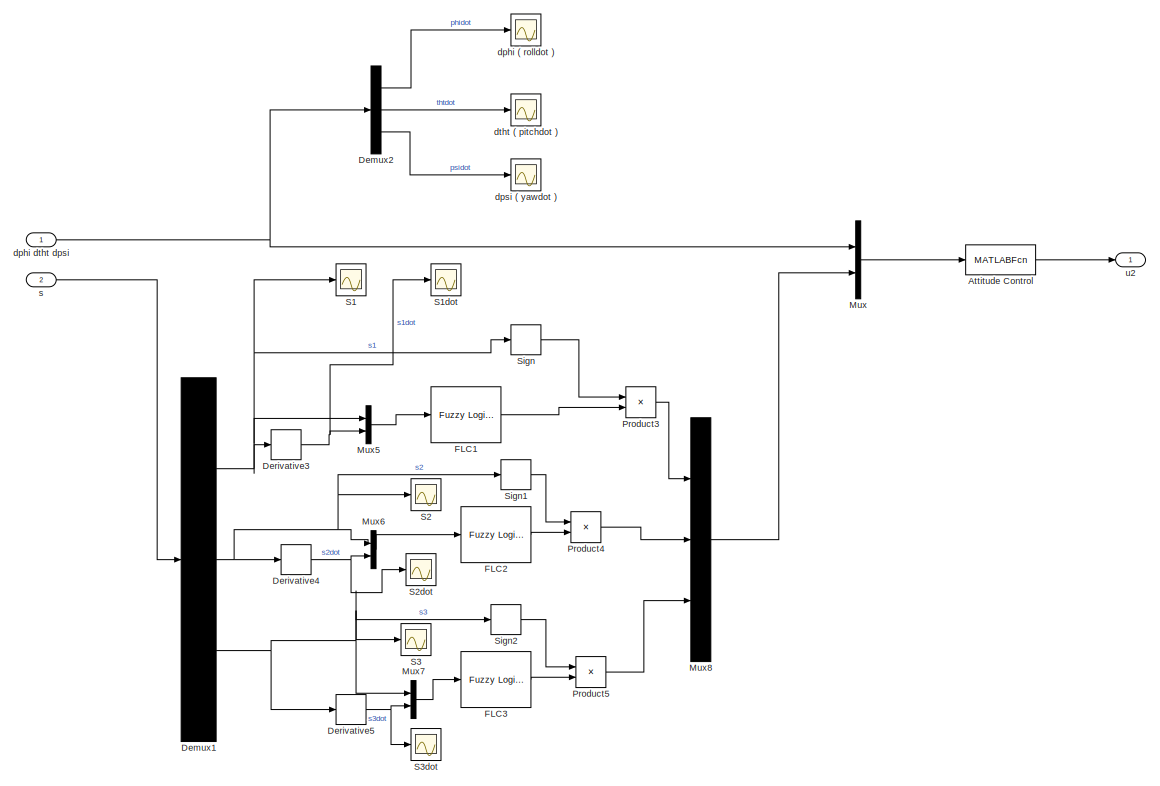
[diagram: attitude control - part 1/2, right side, full height]
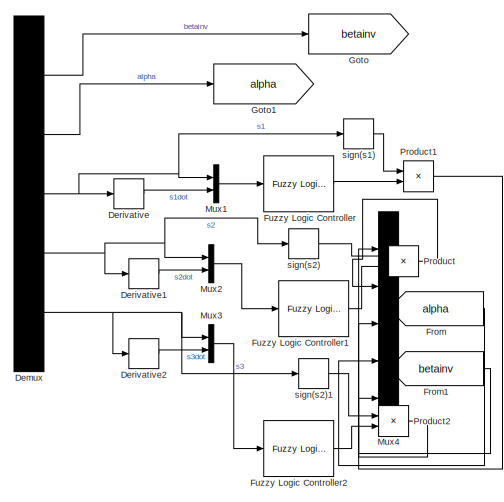
[diagram: attitude control - part 2/2, bottom left region]
BLOCK [SubSystem] attitude control
  Ports = [2, 1]
  RequestExecContextInheritance = off
BLOCK [MATLABFcn] attitude control/Attitude Control
  MATLABFcn = attitude_control(u)
  OutputDimensions = 3
  Ports = [1, 1]
BLOCK [Demux] attitude control/Demux
  Commented = on
  Outputs = 5
  Ports = [1, 5]
BLOCK [Demux] attitude control/Demux1
  Outputs = 3
  Ports = [1, 3]
BLOCK [Demux] attitude control/Demux2
  Outputs = 3
  Ports = [1, 3]
BLOCK [Derivative] attitude control/Derivative
  Commented = on
BLOCK [Derivative] attitude control/Derivative1
  Commented = on
BLOCK [Derivative] attitude control/Derivative2
  Commented = on
BLOCK [Derivative] attitude control/Derivative3
BLOCK [Derivative] attitude control/Derivative4
BLOCK [Derivative] attitude control/Derivative5
BLOCK [Reference] attitude control/FLC1  REF=fuzblock/Fuzzy Logic   (lib defined in mdl_858b3b3e7478)
Controller
  Ports = [1, 1]
  SourceBlock = fuzblock/Fuzzy Logic \nController
  SourceProductBaseCode = FL
  SourceType = Fuzzy Inference System
BLOCK [Reference] attitude control/FLC2  REF=fuzblock/Fuzzy Logic   (lib defined in mdl_858b3b3e7478)
Controller
  Ports = [1, 1]
  SourceBlock = fuzblock/Fuzzy Logic \nController
  SourceProductBaseCode = FL
  SourceType = Fuzzy Inference System
BLOCK [Reference] attitude control/FLC3  REF=fuzblock/Fuzzy Logic   (lib defined in mdl_858b3b3e7478)
Controller
  Ports = [1, 1]
  SourceBlock = fuzblock/Fuzzy Logic \nController
  SourceProductBaseCode = FL
  SourceType = Fuzzy Inference System
BLOCK [From] attitude control/From
  Commented = on
  GotoTag = alpha
BLOCK [From] attitude control/From1
  Commented = on
  GotoTag = betainv
BLOCK [Reference] attitude control/Fuzzy Logic Controller  REF=fuzblock/Fuzzy Logic   (lib defined in mdl_858b3b3e7478)
Controller
  Commented = on
  Ports = [1, 1]
  SourceBlock = fuzblock/Fuzzy Logic \nController
  SourceProductBaseCode = FL
  SourceType = Fuzzy Inference System
BLOCK [Reference] attitude control/Fuzzy Logic Controller1  REF=fuzblock/Fuzzy Logic   (lib defined in mdl_858b3b3e7478)
Controller
  Commented = on
  Ports = [1, 1]
  SourceBlock = fuzblock/Fuzzy Logic \nController
  SourceProductBaseCode = FL
  SourceType = Fuzzy Inference System
BLOCK [Reference] attitude control/Fuzzy Logic Controller2  REF=fuzblock/Fuzzy Logic   (lib defined in mdl_858b3b3e7478)
Controller
  Commented = on
  Ports = [1, 1]
  SourceBlock = fuzblock/Fuzzy Logic \nController
  SourceProductBaseCode = FL
  SourceType = Fuzzy Inference System
BLOCK [Goto] attitude control/Goto
  Commented = on
  GotoTag = betainv
BLOCK [Goto] attitude control/Goto1
  Commented = on
  GotoTag = alpha
BLOCK [Mux] attitude control/Mux
  DisplayOption = bar
  Inputs = 2
  Ports = [2, 1]
BLOCK [Mux] attitude control/Mux1
  Commented = on
  DisplayOption = bar
  Inputs = 2
  Ports = [2, 1]
BLOCK [Mux] attitude control/Mux2
  Commented = on
  DisplayOption = bar
  Inputs = 2
  Ports = [2, 1]
BLOCK [Mux] attitude control/Mux3
  Commented = on
  DisplayOption = bar
  Inputs = 2
  Ports = [2, 1]
BLOCK [Mux] attitude control/Mux4
  Commented = on
  DisplayOption = bar
  Inputs = 5
  Ports = [5, 1]
BLOCK [Mux] attitude control/Mux5
  DisplayOption = bar
  Inputs = 2
  Ports = [2, 1]
BLOCK [Mux] attitude control/Mux6
  DisplayOption = bar
  Inputs = 2
  Ports = [2, 1]
BLOCK [Mux] attitude control/Mux7
  DisplayOption = bar
  Inputs = 2
  Ports = [2, 1]
BLOCK [Mux] attitude control/Mux8
  DisplayOption = bar
  Inputs = 3
  Ports = [3, 1]
BLOCK [Product] attitude control/Product
  Commented = on
  Ports = [2, 1]
BLOCK [Product] attitude control/Product1
  Commented = on
  Ports = [2, 1]
BLOCK [Product] attitude control/Product2
  Commented = on
  Ports = [2, 1]
BLOCK [Product] attitude control/Product3
  Ports = [2, 1]
BLOCK [Product] attitude control/Product4
  Ports = [2, 1]
BLOCK [Product] attitude control/Product5
  Ports = [2, 1]
BLOCK [Scope] attitude control/S1
  Floating = off
  NumInputPorts = 1
  Ports = [1]
  ScopeSpecificationString = Simulink.scopes.TimeScopeBlockCfg('CurrentConfiguration', extmgr.ConfigurationSet(extmgr.Configuration('Core','General UI',true),extmgr.Configuration('Core','Source UI',true),extmgr.Configuration('Sources','WiredSimulink',true,'DataLoggingVariableName','ScopeData2'),extmgr.Configuration('Visuals','Time Domain',true,'SerializedDisplays',{struct('MinYLimReal','-174.66546','MaxYLimReal','39.9387','YL...<+1411ch>
BLOCK [Scope] attitude control/S1dot
  Floating = off
  NumInputPorts = 1
  Ports = [1]
BLOCK [Scope] attitude control/S2
  Floating = off
  NumInputPorts = 1
  Ports = [1]
  ScopeSpecificationString = Simulink.scopes.TimeScopeBlockCfg('CurrentConfiguration', extmgr.ConfigurationSet(extmgr.Configuration('Core','General UI',true),extmgr.Configuration('Core','Source UI',true),extmgr.Configuration('Sources','WiredSimulink',true,'DataLoggingVariableName','ScopeData3'),extmgr.Configuration('Visuals','Time Domain',true,'SerializedDisplays',{struct('MinYLimReal','-309.089','MaxYLimReal','70.37251','YLa...<+1365ch>
BLOCK [Scope] attitude control/S2dot
  Floating = off
  NumInputPorts = 1
  Ports = [1]
  ScopeSpecificationString = Simulink.scopes.TimeScopeBlockCfg('CurrentConfiguration', extmgr.ConfigurationSet(extmgr.Configuration('Core','General UI',true),extmgr.Configuration('Core','Source UI',true),extmgr.Configuration('Sources','WiredSimulink',true,'DataLoggingVariableName','ScopeData2'),extmgr.Configuration('Visuals','Time Domain',true,'SerializedDisplays',{struct('MinYLimReal','-309.089','MaxYLimReal','70.37251','YLa...<+1365ch>
BLOCK [Scope] attitude control/S3
  Floating = off
  NumInputPorts = 1
  Ports = [1]
  ScopeSpecificationString = Simulink.scopes.TimeScopeBlockCfg('CurrentConfiguration', extmgr.ConfigurationSet(extmgr.Configuration('Core','General UI',true),extmgr.Configuration('Core','Source UI',true),extmgr.Configuration('Sources','WiredSimulink',true,'DataLoggingVariableName','ScopeData4'),extmgr.Configuration('Visuals','Time Domain',true,'SerializedDisplays',{struct('MinYLimReal','-0.22917','MaxYLimReal','0.22919','YLab...<+1361ch>
BLOCK [Scope] attitude control/S3dot
  Floating = off
  NumInputPorts = 1
  Ports = [1]
  ScopeSpecificationString = Simulink.scopes.TimeScopeBlockCfg('CurrentConfiguration', extmgr.ConfigurationSet(extmgr.Configuration('Core','General UI',true),extmgr.Configuration('Core','Source UI',true),extmgr.Configuration('Sources','WiredSimulink',true,'DataLoggingVariableName','ScopeData3'),extmgr.Configuration('Visuals','Time Domain',true,'SerializedDisplays',{struct('MinYLimReal','-0.22917','MaxYLimReal','0.22919','YLab...<+1361ch>
BLOCK [Signum] attitude control/Sign
BLOCK [Signum] attitude control/Sign1
BLOCK [Signum] attitude control/Sign2
BLOCK [Scope] attitude control/dphi ( rolldot )
  Floating = off
  NumInputPorts = 1
  Ports = [1]
BLOCK [Inport] attitude control/dphi dtht dpsi
BLOCK [Scope] attitude control/dpsi ( yawdot )
  Floating = off
  NumInputPorts = 1
  Ports = [1]
  ScopeSpecificationString = Simulink.scopes.TimeScopeBlockCfg('CurrentConfiguration', extmgr.ConfigurationSet(extmgr.Configuration('Core','General UI',true),extmgr.Configuration('Core','Source UI',true),extmgr.Configuration('Sources','WiredSimulink',true,'DataLoggingVariableName','ScopeData3'),extmgr.Configuration('Visuals','Time Domain',true),extmgr.Configuration('Tools','Plot Navigation',true),extmgr.Configuration('Tools',...<+40ch>
BLOCK [Scope] attitude control/dtht ( pitchdot )
  Floating = off
  NumInputPorts = 1
  Ports = [1]
BLOCK [Inport] attitude control/s
  Port = 2
BLOCK [Signum] attitude control/sign(s1)
  Commented = on
BLOCK [Signum] attitude control/sign(s2)
  Commented = on
BLOCK [Signum] attitude control/sign(s2)1
  Commented = on
  NameLocation = left
BLOCK [Outport] attitude control/u2
BLOCK [SubSystem] diagonals
  Ports = [2, 2]
  RequestExecContextInheritance = off
BLOCK [Derivative] diagonals/Derivative
BLOCK [Integrator] diagonals/Integrator2
  NameLocation = top
  Ports = [1, 1]
BLOCK [Mux] diagonals/Mux
  DisplayOption = bar
  Ports = [4, 1]
BLOCK [Outport] diagonals/diagonal
BLOCK [Outport] diagonals/diagonald
  Port = 2
BLOCK [MATLABFcn] diagonals/diagonals
  MATLABFcn = diagonals(u)
  OutputDimensions = 3
  Ports = [1, 1]
BLOCK [MATLABFcn] diagonals/diagonals1
  MATLABFcn = diagonals(u)
  OutputDimensions = 3
  Ports = [1, 1]
BLOCK [Inport] diagonals/dphi dtht dpsi
  Port = 2
BLOCK [Inport] diagonals/phiC thtC psiC
BLOCK [Scope] dphi dtht dpsi
  Floating = off
  NumInputPorts = 1
  Ports = [1]
  ScopeSpecificationString = Simulink.scopes.TimeScopeBlockCfg('CurrentConfiguration', extmgr.ConfigurationSet(extmgr.Configuration('Core','General UI',true),extmgr.Configuration('Core','Source UI',true),extmgr.Configuration('Sources','WiredSimulink',true,'DataLoggingVariableName','ScopeData4'),extmgr.Configuration('Visuals','Time Domain',true),extmgr.Configuration('Tools','Plot Navigation',true),extmgr.Configuration('Tools',...<+40ch>
BLOCK [SubSystem] position control
  Ports = [3, 2]
  RequestExecContextInheritance = off
BLOCK [Demux] position control/Demux
  Ports = [1, 4]
BLOCK [Demux] position control/Demux1
  Outputs = 3
  Ports = [1, 3]
BLOCK [Derivative] position control/Derivative
BLOCK [MATLABFcn] position control/Interpreted MATLAB Function
  MATLABFcn = position_control(u)
  OutputDimensions = 4
  Ports = [1, 1]
BLOCK [Mux] position control/Mux
  DisplayOption = bar
  Inputs = 3
  Ports = [3, 1]
BLOCK [Mux] position control/Mux1
  DisplayOption = bar
  Inputs = 3
  Ports = [3, 1]
BLOCK [Mux] position control/Mux2
  DisplayOption = bar
  Inputs = 3
  Ports = [3, 1]
BLOCK [ToWorkspace] position control/To Workspace
  FixptAsFi = on
  MaxDataPoints = inf
  Ports = [1]
  SampleTime = -1
  VariableName = angc
BLOCK [Scope] position control/phi
  Floating = off
  NumInputPorts = 1
  Ports = [1]
  ScopeSpecificationString = Simulink.scopes.TimeScopeBlockCfg('CurrentConfiguration', extmgr.ConfigurationSet(extmgr.Configuration('Core','General UI',true),extmgr.Configuration('Core','Source UI',true),extmgr.Configuration('Sources','WiredSimulink',true,'DataLoggingVariableName','ScopeData2'),extmgr.Configuration('Visuals','Time Domain',true,'SerializedDisplays',{struct('MinYLimReal','-0.18553','MaxYLimReal','0.14294','YLab...<+1367ch>
BLOCK [Inport] position control/phi tht psi
  Port = 3
BLOCK [Outport] position control/phiC thtC psiC
  Port = 2
BLOCK [Scope] position control/psi
  Floating = off
  NumInputPorts = 1
  Ports = [1]
  ScopeSpecificationString = Simulink.scopes.TimeScopeBlockCfg('CurrentConfiguration', extmgr.ConfigurationSet(extmgr.Configuration('Core','General UI',true),extmgr.Configuration('Core','Source UI',true),extmgr.Configuration('Sources','WiredSimulink',true,'DataLoggingVariableName','ScopeData4'),extmgr.Configuration('Visuals','Time Domain',true,'SerializedDisplays',{struct('MinYLimReal','-0.00344','MaxYLimReal','0.00344','YLab...<+1367ch>
BLOCK [Scope] position control/psidot
  Floating = off
  NumInputPorts = 1
  Ports = [1]
  ScopeSpecificationString = Simulink.scopes.TimeScopeBlockCfg('CurrentConfiguration', extmgr.ConfigurationSet(extmgr.Configuration('Core','General UI',true),extmgr.Configuration('Core','Source UI',true),extmgr.Configuration('Sources','WiredSimulink',true,'DataLoggingVariableName','ScopeData1'),extmgr.Configuration('Visuals','Time Domain',true,'SerializedDisplays',{struct('MinYLimReal','-0.54241','MaxYLimReal','0.60348','YLab...<+1369ch>
BLOCK [Inport] position control/refTraj
BLOCK [Scope] position control/tht
  Floating = off
  NumInputPorts = 1
  Ports = [1]
  ScopeSpecificationString = Simulink.scopes.TimeScopeBlockCfg('CurrentConfiguration', extmgr.ConfigurationSet(extmgr.Configuration('Core','General UI',true),extmgr.Configuration('Core','Source UI',true),extmgr.Configuration('Sources','WiredSimulink',true,'DataLoggingVariableName','ScopeData3'),extmgr.Configuration('Visuals','Time Domain',true,'SerializedDisplays',{struct('MinYLimReal','-0.01219','MaxYLimReal','0.10969','YLab...<+1367ch>
BLOCK [Outport] position control/u1
BLOCK [Inport] position control/x dx
  Port = 2
BLOCK [Scope] u1
  Floating = off
  NumInputPorts = 1
  Ports = [1]
  ScopeSpecificationString = Simulink.scopes.TimeScopeBlockCfg('CurrentConfiguration', extmgr.ConfigurationSet(extmgr.Configuration('Core','General UI',true),extmgr.Configuration('Core','Source UI',true),extmgr.Configuration('Sources','WiredSimulink',true,'DataLoggingVariableName','ScopeData2'),extmgr.Configuration('Visuals','Time Domain',true,'SerializedDisplays',{struct('MinYLimReal','-1.1907','MaxYLimReal','10.7163','YLabe...<+1435ch>
BLOCK [Scope] u1 vs u2
  Floating = off
  NumInputPorts = 2
  Ports = [2]
  ScopeSpecificationString = Simulink.scopes.TimeScopeBlockCfg('CurrentConfiguration', extmgr.ConfigurationSet(extmgr.Configuration('Core','General UI',true),extmgr.Configuration('Core','Source UI',true),extmgr.Configuration('Sources','WiredSimulink',true,'DataLoggingVariableName','ScopeData1'),extmgr.Configuration('Visuals','Time Domain',true,'SerializedDisplays',{struct('MinYLimReal','-0.4834','MaxYLimReal','3.97371','YLabe...<+1470ch>
BLOCK [Scope] u2
  Floating = off
  NumInputPorts = 1
  Ports = [1]
  ScopeSpecificationString = Simulink.scopes.TimeScopeBlockCfg('CurrentConfiguration', extmgr.ConfigurationSet(extmgr.Configuration('Core','General UI',true),extmgr.Configuration('Core','Source UI',true),extmgr.Configuration('Sources','WiredSimulink',true,'DataLoggingVariableName','ScopeData1'),extmgr.Configuration('Visuals','Time Domain',true,'SerializedDisplays',{struct('MinYLimReal','-0.04711','MaxYLimReal','0.04712','YLab...<+1444ch>
BLOCK [Scope] x dx
  Floating = off
  NumInputPorts = 1
  Ports = [1]
  ScopeSpecificationString = Simulink.scopes.TimeScopeBlockCfg('CurrentConfiguration', extmgr.ConfigurationSet(extmgr.Configuration('Core','General UI',true),extmgr.Configuration('Core','Source UI',true),extmgr.Configuration('Sources','WiredSimulink',true,'DataLoggingVariableName','ScopeData3'),extmgr.Configuration('Visuals','Time Domain',true),extmgr.Configuration('Tools','Plot Navigation',true),extmgr.Configuration('Tools',...<+40ch>
LINE Integrator1:1 -> position control:3
LINE Integrator:1 -> Model:4
LINE Model/Add1:1 -> Model/Sum4:2
NET Model/Add:1 -> Model/Sum3:2, Model/pulse y:1
LINE Model/Demux1:1 -> Model/Mux4:1
LINE Model/Demux1:2 -> Model/Mux4:2
NET Model/Demux1:3 -> Model/LPF & None:2, Model/Low-Pass Filter (Discrete or Continuous):1, Model/Yaw:1
LINE Model/Demux:1 -> Model/Integrator:1
LINE Model/Demux:2 -> Model/Integrator2:1
LINE Model/Demux:3 -> Model/Integrator4:1
LINE Model/Demux:4 -> Model/Integrator6:1
LINE Model/Demux:5 -> Model/Integrator7:1
LINE Model/Demux:6 -> Model/Integrator8:1
LINE Model/From1:1 -> Model/Mux3:3
LINE Model/From:1 -> Model/Mux3:2
LINE Model/Geser:1 -> Model/Variable Time Delay:2
NET Model/Integrator1:1 -> Model/Mux1:1, Model/Mux3:1
LINE Model/Integrator2:1 -> Model/Sum1:1
NET Model/Integrator3:1 -> Model/Mux1:3, Model/Sum3:1, Model/y:1
LINE Model/Integrator4:1 -> Model/Sum2:1
NET Model/Integrator5:1 -> Model/Mux1:5, Model/Sum4:1, Model/z:1
LINE Model/Integrator6:1 -> Model/Mux2:1
LINE Model/Integrator7:1 -> Model/Mux2:2
LINE Model/Integrator8:1 -> Model/Mux2:3
LINE Model/Integrator:1 -> Model/Sum:1
LINE Model/Interpreted MATLAB Function:1 -> Model/Demux:1
NET Model/Low-Pass Filter (Discrete or Continuous):1 -> Model/LPF & None:1, Model/LPF Yaw:1, Model/Mux4:3
LINE Model/Mux1:1 -> Model/x dx:1
LINE Model/Mux2:1 -> Model/dphi dtht dpsi(1):1
LINE Model/Mux3:1 -> Model/To Workspace:1
LINE Model/Mux4:1 -> Model/To Workspace3:1
LINE Model/Mux:1 -> Model/Interpreted MATLAB Function:1
NET Model/Sinusoids:1 -> Model/Sine:1, Model/Variable Time Delay:1
LINE Model/Step1:1 -> Model/Sum1:2
LINE Model/Step2:1 -> Model/Sum2:2
LINE Model/Step:1 -> Model/Sum:2
NET Model/Sum1:1 -> Model/Integrator3:1, Model/Mux1:4, Model/dy:1
NET Model/Sum2:1 -> Model/Integrator5:1, Model/Mux1:6, Model/dz:1
NET Model/Sum3:1 -> Model/Goto1:1, Model/y + 2:1
NET Model/Sum4:1 -> Model/Goto:1, Model/z + 2:1
NET Model/Sum:1 -> Model/Integrator1:1, Model/Mux1:2
LINE Model/Variable Time Delay:1 -> Model/Shifted Sine:1
LINE Model/dphi dtht dpsi:1 -> Model/Mux:4
NET Model/phi tht psi:1 -> Model/Demux1:1, Model/Mux:3
LINE Model/pulse y +:1 -> Model/Add:1
LINE Model/pulse y -:1 -> Model/Add:2
LINE Model/pulse z +:1 -> Model/Add1:1
LINE Model/pulse z -:1 -> Model/Add1:2
NET Model/u1:1 -> Model/Mux:1, Model/To Workspace1:1
NET Model/u2:1 -> Model/Mux:2, Model/To Workspace2:1
NET Model:1 -> position control:2, x dx:1
NET Model:2 -> Integrator1:1, Integrator:1, Model:3, Sliding Variable:1, attitude control:1, diagonals:2, dphi dtht dpsi:1
NET Saturation1:1 -> Model:2, u1 vs u2:2, u2:1
NET Saturation:1 -> Model:1, u1 vs u2:1, u1:1
LINE Sliding Variable/Derivative:1 -> Sliding Variable/Mux2:4
LINE Sliding Variable/Integrator2:1 -> Sliding Variable/Mux2:2
LINE Sliding Variable/Interpreted MATLAB Function1:1 -> Sliding Variable/sp:1
LINE Sliding Variable/Interpreted MATLAB Function:1 -> Sliding Variable/s:1
NET Sliding Variable/Mux2:1 -> Sliding Variable/Interpreted MATLAB Function1:1, Sliding Variable/Interpreted MATLAB Function:1
NET Sliding Variable/dphi dtht dpsi:1 -> Sliding Variable/Integrator2:1, Sliding Variable/Mux2:1
NET Sliding Variable/phiC thtC psiC:1 -> Sliding Variable/Derivative:1, Sliding Variable/Mux2:3
NET Sliding Variable:1 -> Sliding:1, attitude control:2
LINE Sliding Variable:2 -> Sliding P:1
NET Trajectory Generator/Clock2:1 -> Trajectory Generator/Sine Wave Function3:1, Trajectory Generator/Sine Wave Function:1
LINE Trajectory Generator/Clock:1 -> Trajectory Generator/To Workspace:1
NET Trajectory Generator/Derivative1:1 -> Trajectory Generator/Mux:3, Trajectory Generator/Sin 1:3, Trajectory Generator/ddsignal 1:1
NET Trajectory Generator/Derivative2:1 -> Trajectory Generator/Derivative3:1, Trajectory Generator/Mux:5, Trajectory Generator/Sin 2:2
NET Trajectory Generator/Derivative3:1 -> Trajectory Generator/Mux:6, Trajectory Generator/Sin 2:3
NET Trajectory Generator/Derivative4:1 -> Trajectory Generator/Derivative5:1, Trajectory Generator/Mux:8, Trajectory Generator/Sin 3:2
NET Trajectory Generator/Derivative5:1 -> Trajectory Generator/Mux:9, Trajectory Generator/Sin 3:3
NET Trajectory Generator/Derivative:1 -> Trajectory Generator/Derivative1:1, Trajectory Generator/Mux:2, Trajectory Generator/Sin 1:2, Trajectory Generator/dsignal 1:1
LINE Trajectory Generator/Gain2:1 -> Trajectory Generator/Product1:2
LINE Trajectory Generator/Mux1:1 -> Trajectory Generator/To Workspace1:1
LINE Trajectory Generator/Mux:1 -> Trajectory Generator/r_psi_des:1
NET Trajectory Generator/Ramp4:1 -> Trajectory Generator/Mux1:4, Trajectory Generator/Mux:10, Trajectory Generator/Sin 4:1
LINE Trajectory Generator/Ramp5:1 -> Trajectory Generator/Gain2:1
LINE Trajectory Generator/Ramp:1 -> Trajectory Generator/Gain1:1
NET Trajectory Generator/Signal X1:1 -> Trajectory Generator/Derivative:1, Trajectory Generator/Mux1:1, Trajectory Generator/Mux:1, Trajectory Generator/Sin 1:1, Trajectory Generator/signal 1:1
NET Trajectory Generator/Signal Y:1 -> Trajectory Generator/Derivative2:1, Trajectory Generator/Mux1:2, Trajectory Generator/Mux:4, Trajectory Generator/Scope1:1, Trajectory Generator/Sin 2:1
NET Trajectory Generator/Signal Z:1 -> Trajectory Generator/Derivative4:1, Trajectory Generator/Mux1:3, Trajectory Generator/Mux:7, Trajectory Generator/Sin 3:1
LINE Trajectory Generator/Sine Wave Function3:1 -> Trajectory Generator/Product1:1
LINE Trajectory Generator/Sine Wave Function:1 -> Trajectory Generator/Product:2
NET Trajectory Generator:1 -> TrajectGen:1, position control:1
LINE Unused/Demux1:1 -> Unused/Diagonal D1:1
LINE Unused/Demux1:2 -> Unused/Diagonal D3:1
LINE Unused/Demux1:3 -> Unused/Diagonal D2:1
NET Unused/Demux:1 -> Unused/Derivative:1, Unused/Mux:2, Unused/Sliding P1:1
NET Unused/Demux:2 -> Unused/Derivative1:1, Unused/Mux1:1, Unused/Sliding P2:1
NET Unused/Demux:3 -> Unused/Derivative2:1, Unused/Mux2:1, Unused/Sliding P3:1
NET Unused/Derivative1:1 -> Unused/Mux1:2, Unused/Sliding P2 dot:1
NET Unused/Derivative2:1 -> Unused/Mux2:2, Unused/Sliding P3 dot:1
NET Unused/Derivative:1 -> Unused/Mux:1, Unused/Sliding P1 dot:1
NET Unused/Fuzzy Logic Controller1:1 -> Unused/Mux3:2, Unused/fsmc1:1
NET Unused/Fuzzy Logic Controller2:1 -> Unused/Mux3:3, Unused/fsmc2:1
NET Unused/Fuzzy Logic Controller:1 -> Unused/Mux3:1, Unused/fsmc:1
NET Unused/Gain:1 -> Unused/FSMC x U2:1, Unused/FSMC:1
LINE Unused/In1:1 -> Unused/Product:1
LINE Unused/In2:1 -> Unused/FSMC x U2:2
LINE Unused/In3:1 -> Unused/Demux1:1
LINE Unused/In4:1 -> Unused/Demux:1
NET Unused/Mux1:1 -> Unused/Fuzzy Logic Controller1:1, Unused/Mux4:2, Unused/Sliding P2 vs dot:1
NET Unused/Mux2:1 -> Unused/Fuzzy Logic Controller2:1, Unused/Mux4:3, Unused/Sliding P3 vs dot:1
NET Unused/Mux3:1 -> Unused/FSMC Total:1, Unused/Product:2
LINE Unused/Mux4:1 -> Unused/S vs Sdot:1
NET Unused/Mux:1 -> Unused/Fuzzy Logic Controller:1, Unused/Mux4:1, Unused/Sliding P1 vs dot:1
LINE Unused/Product:1 -> Unused/Gain:1
LINE attitude control/Attitude Control:1 -> attitude control/u2:1
NET attitude control/Demux1:1 -> attitude control/Derivative3:1, attitude control/Mux5:1, attitude control/S1:1, attitude control/Sign:1
NET attitude control/Demux1:2 -> attitude control/Derivative4:1, attitude control/Mux6:1, attitude control/S2:1, attitude control/Sign1:1
NET attitude control/Demux1:3 -> attitude control/Derivative5:1, attitude control/Mux7:1, attitude control/S3:1, attitude control/Sign2:1
LINE attitude control/Demux2:1 -> attitude control/dphi ( rolldot ):1
LINE attitude control/Demux2:2 -> attitude control/dtht ( pitchdot ):1
LINE attitude control/Demux2:3 -> attitude control/dpsi ( yawdot ):1
LINE attitude control/Demux:1 -> attitude control/Goto:1
LINE attitude control/Demux:2 -> attitude control/Goto1:1
NET attitude control/Demux:3 -> attitude control/Derivative:1, attitude control/Mux1:1, attitude control/sign(s1):1
NET attitude control/Demux:4 -> attitude control/Derivative1:1, attitude control/Mux2:1, attitude control/sign(s2):1
NET attitude control/Demux:5 -> attitude control/Derivative2:1, attitude control/Mux3:1, attitude control/sign(s2)1:1
LINE attitude control/Derivative1:1 -> attitude control/Mux2:2
LINE attitude control/Derivative2:1 -> attitude control/Mux3:2
NET attitude control/Derivative3:1 -> attitude control/Mux5:2, attitude control/S1dot:1
NET attitude control/Derivative4:1 -> attitude control/Mux6:2, attitude control/S2dot:1
NET attitude control/Derivative5:1 -> attitude control/Mux7:2, attitude control/S3dot:1
LINE attitude control/Derivative:1 -> attitude control/Mux1:2
LINE attitude control/FLC1:1 -> attitude control/Product3:2
LINE attitude control/FLC2:1 -> attitude control/Product4:2
LINE attitude control/FLC3:1 -> attitude control/Product5:2
LINE attitude control/From1:1 -> attitude control/Mux4:5
LINE attitude control/From:1 -> attitude control/Mux4:4
LINE attitude control/Fuzzy Logic Controller1:1 -> attitude control/Product:2
LINE attitude control/Fuzzy Logic Controller2:1 -> attitude control/Product2:2
LINE attitude control/Fuzzy Logic Controller:1 -> attitude control/Product1:2
LINE attitude control/Mux1:1 -> attitude control/Fuzzy Logic Controller:1
LINE attitude control/Mux2:1 -> attitude control/Fuzzy Logic Controller1:1
LINE attitude control/Mux3:1 -> attitude control/Fuzzy Logic Controller2:1
LINE attitude control/Mux5:1 -> attitude control/FLC1:1
LINE attitude control/Mux6:1 -> attitude control/FLC2:1
LINE attitude control/Mux7:1 -> attitude control/FLC3:1
LINE attitude control/Mux8:1 -> attitude control/Mux:2
LINE attitude control/Mux:1 -> attitude control/Attitude Control:1
LINE attitude control/Product1:1 -> attitude control/Mux4:1
LINE attitude control/Product2:1 -> attitude control/Mux4:3
LINE attitude control/Product3:1 -> attitude control/Mux8:1
LINE attitude control/Product4:1 -> attitude control/Mux8:2
LINE attitude control/Product5:1 -> attitude control/Mux8:3
LINE attitude control/Product:1 -> attitude control/Mux4:2
LINE attitude control/Sign1:1 -> attitude control/Product4:1
LINE attitude control/Sign2:1 -> attitude control/Product5:1
LINE attitude control/Sign:1 -> attitude control/Product3:1
NET attitude control/dphi dtht dpsi:1 -> attitude control/Demux2:1, attitude control/Mux:1
LINE attitude control/s:1 -> attitude control/Demux1:1
LINE attitude control/sign(s1):1 -> attitude control/Product1:1
LINE attitude control/sign(s2)1:1 -> attitude control/Product2:1
LINE attitude control/sign(s2):1 -> attitude control/Product:1
LINE attitude control:1 -> Saturation1:1
LINE diagonals/Derivative:1 -> diagonals/Mux:4
LINE diagonals/Integrator2:1 -> diagonals/Mux:2
NET diagonals/Mux:1 -> diagonals/diagonals1:1, diagonals/diagonals:1
LINE diagonals/diagonals1:1 -> diagonals/diagonald:1
LINE diagonals/diagonals:1 -> diagonals/diagonal:1
NET diagonals/dphi dtht dpsi:1 -> diagonals/Integrator2:1, diagonals/Mux:1
NET diagonals/phiC thtC psiC:1 -> diagonals/Derivative:1, diagonals/Mux:3
LINE diagonals:1 -> Diag:1
LINE diagonals:2 -> Diagonal D:1
NET position control/Demux1:1 -> position control/Mux2:1, position control/phi:1
NET position control/Demux1:2 -> position control/Mux2:2, position control/tht:1
NET position control/Demux1:3 -> position control/Derivative:1, position control/Mux2:3, position control/psi:1
LINE position control/Demux:1 -> position control/u1:1
LINE position control/Demux:2 -> position control/Mux1:1
LINE position control/Demux:3 -> position control/Mux1:2
LINE position control/Demux:4 -> position control/Mux1:3
LINE position control/Derivative:1 -> position control/psidot:1
LINE position control/Interpreted MATLAB Function:1 -> position control/Demux:1
NET position control/Mux1:1 -> position control/To Workspace:1, position control/phiC thtC psiC:1
LINE position control/Mux2:1 -> position control/Mux:3
LINE position control/Mux:1 -> position control/Interpreted MATLAB Function:1
LINE position control/phi tht psi:1 -> position control/Demux1:1
LINE position control/refTraj:1 -> position control/Mux:1
LINE position control/x dx:1 -> position control/Mux:2
LINE position control:1 -> Saturation:1
NET position control:2 -> Sliding Variable:2, diagonals:1
note: NET lines group one-source signal fan-out (src -> all destinations, sorted); 1:1 wires keep LINE
